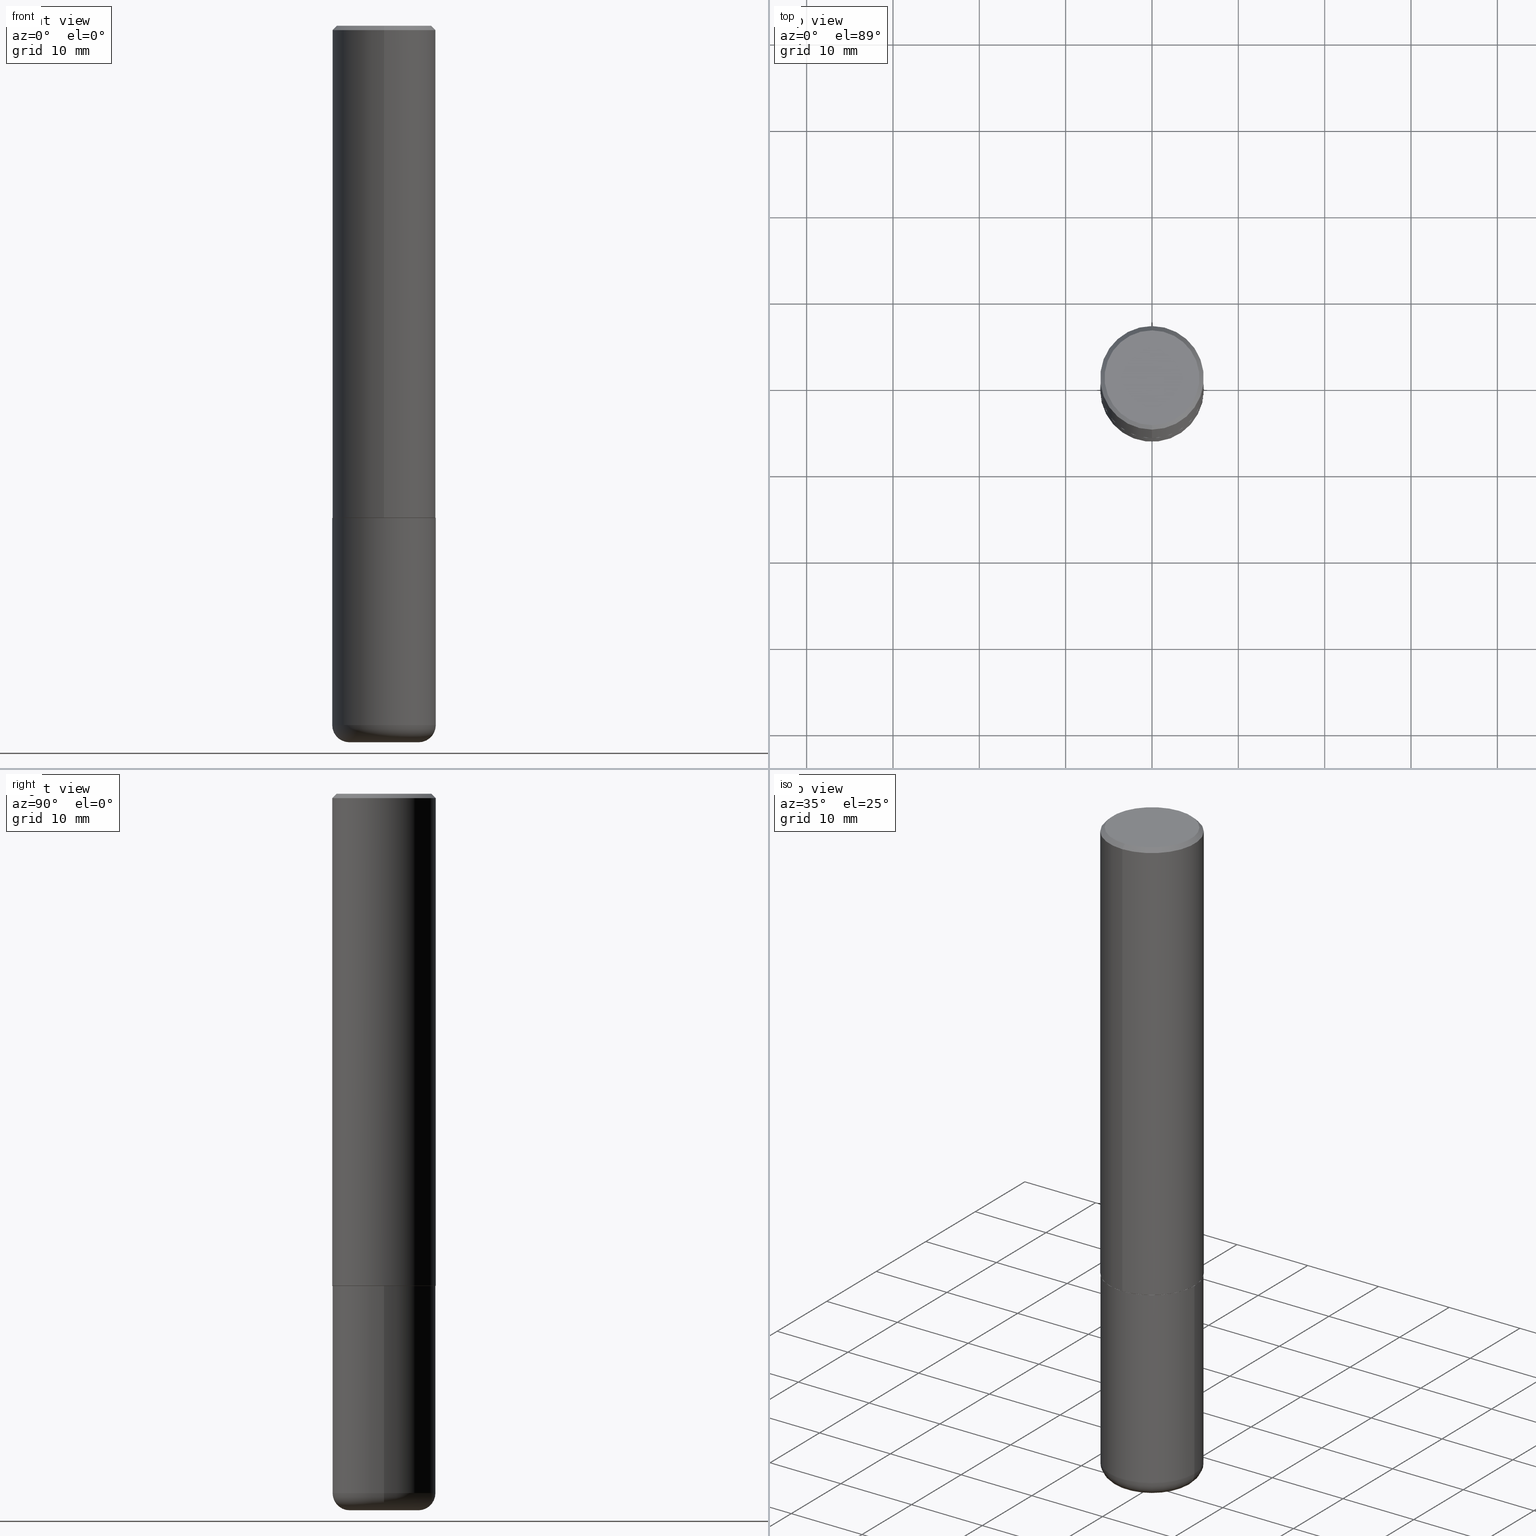
[diagram: canonical four-view strip — front | top / right | iso, engineering-drawing reading convention]
A machine part, canonical four-view strip (front | top / right | iso — engineering-drawing reading convention). The complete STEP part file that produces these views, byte-faithful:
ISO-10303-21;
HEADER;
FILE_DESCRIPTION (( 'STEP AP203' ),
    '1' );
FILE_NAME ('46913.STEP',
    '2024-03-05T07:52:58',
    ( '' ),
    ( '' ),
    'SwSTEP 2.0',
    'SolidWorks 2023',
    '' );
FILE_SCHEMA (( 'CONFIG_CONTROL_DESIGN' ));
ENDSEC;

DATA;
#1 = ORIENTED_EDGE ( 'NONE', *, *, #108, .T. ) ;
#2 = LINE ( 'NONE', #103, #388 ) ;
#3 = EDGE_LOOP ( 'NONE', ( #93, #60 ) ) ;
#4 = PRODUCT ( '46913', '46913', '', ( #148 ) ) ;
#5 = AXIS2_PLACEMENT_3D ( 'NONE', #234, #207, #49 ) ;
#6 =( GEOMETRIC_REPRESENTATION_CONTEXT ( 3 ) GLOBAL_UNCERTAINTY_ASSIGNED_CONTEXT ( ( #297 ) ) GLOBAL_UNIT_ASSIGNED_CONTEXT ( ( #379, #141, #247 ) ) REPRESENTATION_CONTEXT ( 'NONE', 'WORKASPACE' ) );
#7 = DIRECTION ( 'NONE',  ( -2.450099953360415403E-29, 3.484849272499618930E-15, 1.000000000000000000 ) ) ;
#8 = ORIENTED_EDGE ( 'NONE', *, *, #205, .F. ) ;
#9 = EDGE_CURVE ( 'NONE', #314, #150, #231, .T. ) ;
#10 = VERTEX_POINT ( 'NONE', #325 ) ;
#11 = VECTOR ( 'NONE', #397, 39.37007874015748143 ) ;
#12 = CARTESIAN_POINT ( 'NONE',  ( 5.495819205382747907E-29, -7.816865403143895871E-15, -2.243100000000000094 ) ) ;
#13 = PERSON_AND_ORGANIZATION_ROLE ( 'design_supplier' ) ;
#14 = CARTESIAN_POINT ( 'NONE',  ( 4.900199906720849654E-31, -6.969698544999262955E-17, -0.02000000000000007674 ) ) ;
#15 = PERSON_AND_ORGANIZATION ( #404, #201 ) ;
#16 = LINE ( 'NONE', #52, #11 ) ;
#17 = EDGE_CURVE ( 'NONE', #105, #65, #291, .T. ) ;
#18 = PERSON_AND_ORGANIZATION_ROLE ( 'creator' ) ;
#19 = FACE_OUTER_BOUND ( 'NONE', #253, .T. ) ;
#20 = CIRCLE ( 'NONE', #173, 0.2361999999999999933 ) ;
#21 = CC_DESIGN_PERSON_AND_ORGANIZATION_ASSIGNMENT ( #177, #368, ( #4 ) ) ;
#22 = CALENDAR_DATE ( 2024, 5, 3 ) ;
#23 = LINE ( 'NONE', #204, #193 ) ;
#24 = PERSON_AND_ORGANIZATION_ROLE ( 'creator' ) ;
#25 = CARTESIAN_POINT ( 'NONE',  ( 1.649375784469496722E-15, 0.2361999999999999655, -0.02000000000000090247 ) ) ;
#26 = CARTESIAN_POINT ( 'NONE',  ( 7.991058417971171713E-29, -1.140911357093774644E-14, -3.267700000000000049 ) ) ;
#27 = EDGE_LOOP ( 'NONE', ( #383, #188, #160, #317 ) ) ;
#28 = AXIS2_PLACEMENT_3D ( 'NONE', #316, #281, #31 ) ;
#29 = FACE_OUTER_BOUND ( 'NONE', #279, .T. ) ;
#30 = VERTEX_POINT ( 'NONE', #168 ) ;
#31 = DIRECTION ( 'NONE',  ( 1.000000000000000000, -6.982962677686269077E-15, 0.000000000000000000 ) ) ;
#32 = ORIENTED_EDGE ( 'NONE', *, *, #17, .F. ) ;
#33 = ADVANCED_FACE ( 'NONE', ( #356 ), #40, .T. ) ;
#34 = APPLICATION_CONTEXT ( 'configuration controlled 3d designs of mechanical parts and assemblies' ) ;
#35 = ORIENTED_EDGE ( 'NONE', *, *, #396, .T. ) ;
#36 = AXIS2_PLACEMENT_3D ( 'NONE', #192, #101, #74 ) ;
#37 = AXIS2_PLACEMENT_3D ( 'NONE', #313, #254, #346 ) ;
#38 = EDGE_LOOP ( 'NONE', ( #164, #260, #319, #89 ) ) ;
#39 = ADVANCED_FACE ( 'NONE', ( #162 ), #394, .T. ) ;
#40 = PLANE ( 'NONE',  #159 ) ;
#41 = DIRECTION ( 'NONE',  ( -2.445468806185136597E-29, 3.491481338843145583E-15, 1.000000000000000000 ) ) ;
#42 = CIRCLE ( 'NONE', #272, 0.2362000000000002986 ) ;
#43 = CIRCLE ( 'NONE', #167, 0.1575000000000000011 ) ;
#44 = DIRECTION ( 'NONE',  ( -2.445468806185136597E-29, 3.491481338843145583E-15, 1.000000000000000000 ) ) ;
#45 = DIRECTION ( 'NONE',  ( 1.000000000000000000, -6.982962677686264344E-15, 0.000000000000000000 ) ) ;
#46 = CYLINDRICAL_SURFACE ( 'NONE', #54, 0.2361999999999999933 ) ;
#47 = CC_DESIGN_DATE_AND_TIME_ASSIGNMENT ( #175, #398, ( #372 ) ) ;
#48 = AXIS2_PLACEMENT_3D ( 'NONE', #78, #271, #144 ) ;
#49 = DIRECTION ( 'NONE',  ( 6.982962677686265922E-15, 1.000000000000000000, -3.487819265831411350E-15 ) ) ;
#50 = COORDINATED_UNIVERSAL_TIME_OFFSET ( 5, 0, .BEHIND. ) ;
#51 = LINE ( 'NONE', #80, #225 ) ;
#52 = CARTESIAN_POINT ( 'NONE',  ( 1.671196514507810409E-15, 0.2351999999999921653, -2.244100000000000872 ) ) ;
#53 = DIRECTION ( 'NONE',  ( -6.982962677686265922E-15, -1.000000000000000000, 3.484849272499618930E-15 ) ) ;
#54 = AXIS2_PLACEMENT_3D ( 'NONE', #328, #298, #304 ) ;
#55 = EDGE_CURVE ( 'NONE', #105, #320, #2, .T. ) ;
#56 = PERSON_AND_ORGANIZATION ( #404, #201 ) ;
#57 = DIRECTION ( 'NONE',  ( -6.982962677686265922E-15, -1.000000000000000000, 3.484849272499619324E-15 ) ) ;
#58 = CARTESIAN_POINT ( 'NONE',  ( -2.474856915300181060E-45, 3.520061828088122209E-31, 1.010104470189393763E-16 ) ) ;
#59 = DIRECTION ( 'NONE',  ( 1.000000000000000000, -6.982962677686266711E-15, 4.876176775795936353E-29 ) ) ;
#60 = ORIENTED_EDGE ( 'NONE', *, *, #17, .T. ) ;
#61 = CLOSED_SHELL ( 'NONE', ( #153, #418, #196, #86, #259, #39, #226, #128 ) ) ;
#62 = CIRCLE ( 'NONE', #112, 0.2362000000000000210 ) ;
#63 = DIRECTION ( 'NONE',  ( -2.450099953360415403E-29, 3.484849272499618930E-15, 1.000000000000000000 ) ) ;
#64 = EDGE_CURVE ( 'NONE', #378, #410, #166, .T. ) ;
#65 = VERTEX_POINT ( 'NONE', #130 ) ;
#66 = EDGE_LOOP ( 'NONE', ( #32, #219, #341, #349 ) ) ;
#67 = EDGE_LOOP ( 'NONE', ( #216, #91 ) ) ;
#68 = AXIS2_PLACEMENT_3D ( 'NONE', #149, #283, #92 ) ;
#69 = EDGE_LOOP ( 'NONE', ( #126, #133, #264, #8 ) ) ;
#70 = FACE_OUTER_BOUND ( 'NONE', #27, .T. ) ;
#71 = CARTESIAN_POINT ( 'NONE',  ( 7.798600022924401307E-29, -1.113433398957079310E-14, -3.189000000000000501 ) ) ;
#72 = AXIS2_PLACEMENT_3D ( 'NONE', #191, #41, #45 ) ;
#73 = LOCAL_TIME ( 2, 52, 58.00000000000000000, #305 ) ;
#74 = DIRECTION ( 'NONE',  ( -1.000000000000000000, 7.105427357600995548E-15, 0.000000000000000000 ) ) ;
#75 = ADVANCED_FACE ( 'NONE', ( #263 ), #345, .T. ) ;
#76 = CARTESIAN_POINT ( 'NONE',  ( -2.474856915300181060E-45, 3.520061828088122209E-31, 1.010104470189393763E-16 ) ) ;
#77 = ADVANCED_BREP_SHAPE_REPRESENTATION ( '46913', ( #377, #407, #155 ), #6 ) ;
#78 = CARTESIAN_POINT ( 'NONE',  ( 5.498269305336108440E-29, -7.820350252416394661E-15, -2.244099999999999984 ) ) ;
#79 = APPLICATION_PROTOCOL_DEFINITION ( 'international standard', 'config_control_design', 1994, #303 ) ;
#80 = CARTESIAN_POINT ( 'NONE',  ( 1.649375784469496722E-15, 0.2361999999999999655, -0.02000000000000090247 ) ) ;
#81 = CARTESIAN_POINT ( 'NONE',  ( 0.000000000000000000, 0.000000000000000000, 0.000000000000000000 ) ) ;
#82 = DIRECTION ( 'NONE',  ( 4.937700262164536998E-15, 0.7071067811865435759, -0.7071067811865514585 ) ) ;
#83 = COORDINATED_UNIVERSAL_TIME_OFFSET ( 5, 0, .BEHIND. ) ;
#84 = APPROVAL ( #406, 'UNSPECIFIED' ) ;
#85 = DIRECTION ( 'NONE',  ( -6.982962677686265133E-15, -1.000000000000000000, 3.484499991918703113E-15 ) ) ;
#86 = ADVANCED_FACE ( 'NONE', ( #70 ), #100, .T. ) ;
#87 = CARTESIAN_POINT ( 'NONE',  ( -1.649375784469497117E-15, -0.2362000000000001598, 8.231213981644106002E-16 ) ) ;
#88 = PLANE ( 'NONE',  #68 ) ;
#89 = ORIENTED_EDGE ( 'NONE', *, *, #391, .F. ) ;
#90 = LINE ( 'NONE', #415, #218 ) ;
#91 = ORIENTED_EDGE ( 'NONE', *, *, #108, .F. ) ;
#92 = DIRECTION ( 'NONE',  ( -1.000000000000000000, 6.982962677686265922E-15, -4.876176775795935793E-29 ) ) ;
#93 = ORIENTED_EDGE ( 'NONE', *, *, #336, .T. ) ;
#94 = LOCAL_TIME ( 2, 52, 58.00000000000000000, #50 ) ;
#95 = CARTESIAN_POINT ( 'NONE',  ( 0.000000000000000000, 0.000000000000000000, 0.000000000000000000 ) ) ;
#96 = ORIENTED_EDGE ( 'NONE', *, *, #361, .T. ) ;
#97 = EDGE_LOOP ( 'NONE', ( #257, #134, #223, #287 ) ) ;
#98 = EDGE_CURVE ( 'NONE', #10, #410, #261, .T. ) ;
#99 = ORIENTED_EDGE ( 'NONE', *, *, #384, .F. ) ;
#100 = CONICAL_SURFACE ( 'NONE', #255, 0.2362000000000000210, 0.7853981633974461696 ) ;
#101 = DIRECTION ( 'NONE',  ( 7.105427357601001859E-15, 1.000000000000000000, -3.491481338843145583E-15 ) ) ;
#102 = DIRECTION ( 'NONE',  ( -6.982962677686265922E-15, -1.000000000000000000, 3.484849272499618535E-15 ) ) ;
#103 = CARTESIAN_POINT ( 'NONE',  ( -1.620449627073635276E-15, -0.2362000000000001043, -0.01999999999999925449 ) ) ;
#104 = CONICAL_SURFACE ( 'NONE', #5, 0.2362000000000000210, 0.7853981633974461696 ) ;
#105 = VERTEX_POINT ( 'NONE', #352 ) ;
#106 = FACE_OUTER_BOUND ( 'NONE', #97, .T. ) ;
#107 = CC_DESIGN_PERSON_AND_ORGANIZATION_ASSIGNMENT ( #278, #270, ( #194 ) ) ;
#108 = EDGE_CURVE ( 'NONE', #378, #347, #43, .T. ) ;
#109 = APPROVAL_DATE_TIME ( #199, #357 ) ;
#110 = CARTESIAN_POINT ( 'NONE',  ( 4.900199906720849654E-31, -6.969698544999262955E-17, -0.02000000000000007674 ) ) ;
#111 = DATE_AND_TIME ( #235, #73 ) ;
#112 = AXIS2_PLACEMENT_3D ( 'NONE', #274, #198, #408 ) ;
#113 = CARTESIAN_POINT ( 'NONE',  ( 0.1575000000000000011, -1.223415061130637979E-14, -3.189000000000000501 ) ) ;
#114 = PERSON_AND_ORGANIZATION ( #404, #201 ) ;
#115 = DIRECTION ( 'NONE',  ( -2.450099953360415403E-29, 3.484849272499618930E-15, 1.000000000000000000 ) ) ;
#116 = DATE_TIME_ROLE ( 'classification_date' ) ;
#117 = CARTESIAN_POINT ( 'NONE',  ( -0.2361999999999999933, -7.806481689168991326E-15, -2.244100000000000428 ) ) ;
#118 = SHAPE_DEFINITION_REPRESENTATION ( #229, #77 ) ;
#119 = CARTESIAN_POINT ( 'NONE',  ( -0.2361999999999999933, 1.678301941865356591E-15, -1.161852468318208757E-29 ) ) ;
#120 = VECTOR ( 'NONE', #249, 39.37007874015748143 ) ;
#121 = ORIENTED_EDGE ( 'NONE', *, *, #239, .T. ) ;
#122 = ORIENTED_EDGE ( 'NONE', *, *, #64, .F. ) ;
#123 = FACE_OUTER_BOUND ( 'NONE', #395, .T. ) ;
#124 = VERTEX_POINT ( 'NONE', #230 ) ;
#125 = CARTESIAN_POINT ( 'NONE',  ( -1.620449627073635276E-15, -0.2362000000000001043, -0.01999999999999925449 ) ) ;
#126 = ORIENTED_EDGE ( 'NONE', *, *, #276, .T. ) ;
#127 = AXIS2_PLACEMENT_3D ( 'NONE', #301, #139, #85 ) ;
#128 = ADVANCED_FACE ( 'NONE', ( #322 ), #359, .F. ) ;
#129 = EDGE_LOOP ( 'NONE', ( #122, #1, #227, #154 ) ) ;
#130 = CARTESIAN_POINT ( 'NONE',  ( 1.579546157692633424E-15, 0.2161999999999999478, -6.524139656954780766E-16 ) ) ;
#131 = DIRECTION ( 'NONE',  ( 6.982962677686265922E-15, 1.000000000000000000, -3.487819265831411350E-15 ) ) ;
#132 = DIRECTION ( 'NONE',  ( 2.438088387897960049E-29, -3.491481338843145188E-15, -1.000000000000000000 ) ) ;
#133 = ORIENTED_EDGE ( 'NONE', *, *, #355, .T. ) ;
#134 = ORIENTED_EDGE ( 'NONE', *, *, #64, .T. ) ;
#135 = AXIS2_PLACEMENT_3D ( 'NONE', #142, #367, #236 ) ;
#136 = DIRECTION ( 'NONE',  ( -6.982962677686265922E-15, -1.000000000000000000, 3.469747663417772663E-15 ) ) ;
#137 = EDGE_CURVE ( 'NONE', #347, #10, #307, .T. ) ;
#138 = DIRECTION ( 'NONE',  ( 1.000000000000000000, 0.000000000000000000, 0.000000000000000000 ) ) ;
#139 = DIRECTION ( 'NONE',  ( -2.450099953360415403E-29, 3.484849272499618930E-15, 1.000000000000000000 ) ) ;
#140 = DIMENSIONAL_EXPONENTS ( 1.000000000000000000, 0.000000000000000000, 0.000000000000000000, 0.000000000000000000, 0.000000000000000000, 0.000000000000000000, 0.000000000000000000 ) ;
#141 =( NAMED_UNIT ( * ) PLANE_ANGLE_UNIT ( ) SI_UNIT ( $, .RADIAN. ) );
#142 = CARTESIAN_POINT ( 'NONE',  ( 1.509716530915770323E-15, 0.2161999999999999478, -7.029191892049475614E-16 ) ) ;
#143 = AXIS2_PLACEMENT_3D ( 'NONE', #411, #339, #57 ) ;
#144 = DIRECTION ( 'NONE',  ( -6.982962677686265133E-15, -1.000000000000000000, 3.484499991918703113E-15 ) ) ;
#145 = CALENDAR_DATE ( 2024, 5, 3 ) ;
#146 = EDGE_CURVE ( 'NONE', #65, #385, #51, .T. ) ;
#147 = DIRECTION ( 'NONE',  ( -4.937700262165812586E-15, -0.7071067811867262076, 0.7071067811863689379 ) ) ;
#148 = MECHANICAL_CONTEXT ( 'NONE', #303, 'mechanical' ) ;
#149 = CARTESIAN_POINT ( 'NONE',  ( 5.487876547960065873E-29, -7.835233272497903917E-15, -2.244100000000000428 ) ) ;
#150 = VERTEX_POINT ( 'NONE', #334 ) ;
#151 = DIRECTION ( 'NONE',  ( -2.445468806185136877E-29, 3.491481338843145188E-15, 1.000000000000000000 ) ) ;
#152 = CIRCLE ( 'NONE', #37, 0.2351999999999999924 ) ;
#153 = ADVANCED_FACE ( 'NONE', ( #202 ), #315, .T. ) ;
#154 = ORIENTED_EDGE ( 'NONE', *, *, #288, .F. ) ;
#155 = AXIS2_PLACEMENT_3D ( 'NONE', #81, #311, #138 ) ;
#156 = ORIENTED_EDGE ( 'NONE', *, *, #391, .T. ) ;
#157 = DIRECTION ( 'NONE',  ( -2.450099953360415403E-29, 3.484849272499618930E-15, 1.000000000000000000 ) ) ;
#158 = ORIENTED_EDGE ( 'NONE', *, *, #205, .T. ) ;
#159 = AXIS2_PLACEMENT_3D ( 'NONE', #195, #132, #190 ) ;
#160 = ORIENTED_EDGE ( 'NONE', *, *, #146, .T. ) ;
#161 = CIRCLE ( 'NONE', #403, 0.2362000000000000210 ) ;
#162 = FACE_OUTER_BOUND ( 'NONE', #228, .T. ) ;
#163 = DIRECTION ( 'NONE',  ( -2.450099953360415403E-29, 3.484849272499618930E-15, 1.000000000000000000 ) ) ;
#164 = ORIENTED_EDGE ( 'NONE', *, *, #98, .T. ) ;
#165 = EDGE_CURVE ( 'NONE', #343, #150, #23, .T. ) ;
#166 = CIRCLE ( 'NONE', #36, 0.07869999999999996443 ) ;
#167 = AXIS2_PLACEMENT_3D ( 'NONE', #392, #44, #293 ) ;
#168 = CARTESIAN_POINT ( 'NONE',  ( 1.674749228186612096E-15, 0.2351999999999921653, -2.244100000000000872 ) ) ;
#169 = ORIENTED_EDGE ( 'NONE', *, *, #222, .F. ) ;
#170 = CC_DESIGN_PERSON_AND_ORGANIZATION_ASSIGNMENT ( #114, #24, ( #262 ) ) ;
#171 = EDGE_CURVE ( 'NONE', #30, #314, #16, .T. ) ;
#172 = CYLINDRICAL_SURFACE ( 'NONE', #180, 0.2362000000000001598 ) ;
#173 = AXIS2_PLACEMENT_3D ( 'NONE', #174, #306, #246 ) ;
#174 = CARTESIAN_POINT ( 'NONE',  ( 5.487876547960065873E-29, -7.835233272497903917E-15, -2.244100000000000428 ) ) ;
#175 = DATE_AND_TIME ( #145, #273 ) ;
#176 = FACE_OUTER_BOUND ( 'NONE', #38, .T. ) ;
#177 = PERSON_AND_ORGANIZATION ( #404, #201 ) ;
#178 = CARTESIAN_POINT ( 'NONE',  ( 0.000000000000000000, 0.000000000000000000, 0.000000000000000000 ) ) ;
#179 = APPROVAL_STATUS ( 'not_yet_approved' ) ;
#180 = AXIS2_PLACEMENT_3D ( 'NONE', #178, #327, #181 ) ;
#181 = DIRECTION ( 'NONE',  ( -6.982962677686265922E-15, -1.000000000000000000, 3.484849272499619324E-15 ) ) ;
#182 = APPROVAL_ROLE ( '' ) ;
#183 = LINE ( 'NONE', #119, #299 ) ;
#184 = CARTESIAN_POINT ( 'NONE',  ( -1.642392821791754502E-15, -0.2352000000000078195, -2.244099999999999095 ) ) ;
#185 = ORIENTED_EDGE ( 'NONE', *, *, #9, .T. ) ;
#186 = APPROVAL_PERSON_ORGANIZATION ( #203, #357, #338 ) ;
#187 = CARTESIAN_POINT ( 'NONE',  ( -0.1575000000000000011, -9.873020404910514350E-15, -3.267700000000000049 ) ) ;
#188 = ORIENTED_EDGE ( 'NONE', *, *, #336, .F. ) ;
#189 = AXIS2_PLACEMENT_3D ( 'NONE', #95, #251, #59 ) ;
#190 = DIRECTION ( 'NONE',  ( -1.000000000000000000, 6.982962677686265922E-15, -4.876176775795935793E-29 ) ) ;
#191 = CARTESIAN_POINT ( 'NONE',  ( 7.798600022924401307E-29, -1.113433398957079310E-14, -3.189000000000000501 ) ) ;
#192 = CARTESIAN_POINT ( 'NONE',  ( -0.1575000000000000011, -1.001522918074863550E-14, -3.189000000000000501 ) ) ;
#193 = VECTOR ( 'NONE', #147, 39.37007874015748143 ) ;
#194 = SECURITY_CLASSIFICATION ( '', '', #363 ) ;
#195 = CARTESIAN_POINT ( 'NONE',  ( 7.991058417971171713E-29, -1.140911357093774644E-14, -3.267700000000000049 ) ) ;
#196 = ADVANCED_FACE ( 'NONE', ( #402 ), #104, .T. ) ;
#197 = DIRECTION ( 'NONE',  ( -6.982962677686265133E-15, -1.000000000000000000, 3.484499991918703113E-15 ) ) ;
#198 = DIRECTION ( 'NONE',  ( -2.445468806185136597E-29, 3.491481338843145583E-15, 1.000000000000000000 ) ) ;
#199 = DATE_AND_TIME ( #269, #94 ) ;
#200 = AXIS2_PLACEMENT_3D ( 'NONE', #14, #243, #268 ) ;
#201 = ORGANIZATION ( 'UNSPECIFIED', 'UNSPECIFIED', '' ) ;
#202 = FACE_OUTER_BOUND ( 'NONE', #393, .T. ) ;
#203 = PERSON_AND_ORGANIZATION ( #404, #201 ) ;
#204 = CARTESIAN_POINT ( 'NONE',  ( -1.642392821791754502E-15, -0.2352000000000078195, -2.244099999999999095 ) ) ;
#205 = EDGE_CURVE ( 'NONE', #150, #320, #335, .T. ) ;
#206 = CALENDAR_DATE ( 2024, 5, 3 ) ;
#207 = DIRECTION ( 'NONE',  ( 2.450099953360415403E-29, -3.484849272499618930E-15, -1.000000000000000000 ) ) ;
#208 = AXIS2_PLACEMENT_3D ( 'NONE', #289, #163, #197 ) ;
#209 = AXIS2_PLACEMENT_3D ( 'NONE', #58, #157, #217 ) ;
#210 = FACE_OUTER_BOUND ( 'NONE', #69, .T. ) ;
#211 = ADVANCED_FACE ( 'NONE', ( #106 ), #324, .T. ) ;
#212 = APPROVAL_ROLE ( '' ) ;
#213 = CARTESIAN_POINT ( 'NONE',  ( 0.1575000000000000011, -1.250893019267333313E-14, -3.267700000000000049 ) ) ;
#214 = VERTEX_POINT ( 'NONE', #117 ) ;
#215 = DIRECTION ( 'NONE',  ( 1.000000000000000000, -6.982962677686261977E-15, 0.000000000000000000 ) ) ;
#216 = ORIENTED_EDGE ( 'NONE', *, *, #321, .F. ) ;
#217 = DIRECTION ( 'NONE',  ( -6.982962677686265922E-15, -1.000000000000000000, 3.484849272499618535E-15 ) ) ;
#218 = VECTOR ( 'NONE', #340, 39.37007874015748143 ) ;
#219 = ORIENTED_EDGE ( 'NONE', *, *, #55, .T. ) ;
#220 = APPROVAL_PERSON_ORGANIZATION ( #15, #84, #212 ) ;
#221 = DIRECTION ( 'NONE',  ( -2.445468806185136597E-29, 3.491481338843145583E-15, 1.000000000000000000 ) ) ;
#222 = EDGE_CURVE ( 'NONE', #343, #30, #232, .T. ) ;
#223 = ORIENTED_EDGE ( 'NONE', *, *, #98, .F. ) ;
#224 = ORIENTED_EDGE ( 'NONE', *, *, #165, .F. ) ;
#225 = VECTOR ( 'NONE', #82, 39.37007874015748143 ) ;
#226 = ADVANCED_FACE ( 'NONE', ( #19 ), #409, .F. ) ;
#227 = ORIENTED_EDGE ( 'NONE', *, *, #137, .T. ) ;
#228 = EDGE_LOOP ( 'NONE', ( #323, #96, #416, #374 ) ) ;
#229 = PRODUCT_DEFINITION_SHAPE ( 'NONE', 'NONE',  #372 ) ;
#230 = CARTESIAN_POINT ( 'NONE',  ( 0.2361999999999999933, -9.484609056967400443E-15, -2.244100000000000428 ) ) ;
#231 = CIRCLE ( 'NONE', #329, 0.2362000000000002986 ) ;
#232 = CIRCLE ( 'NONE', #48, 0.2351999999999999924 ) ;
#233 = ORIENTED_EDGE ( 'NONE', *, *, #276, .F. ) ;
#234 = CARTESIAN_POINT ( 'NONE',  ( 4.900199906720849654E-31, -6.969698544999262955E-17, -0.02000000000000007674 ) ) ;
#235 = CALENDAR_DATE ( 2024, 5, 3 ) ;
#236 = DIRECTION ( 'NONE',  ( 6.982962677686265922E-15, 1.000000000000000000, -3.484849272499618930E-15 ) ) ;
#237 = APPROVAL_DATE_TIME ( #111, #387 ) ;
#238 = VECTOR ( 'NONE', #242, 39.37007874015748143 ) ;
#239 = EDGE_CURVE ( 'NONE', #214, #124, #20, .T. ) ;
#240 = DESIGN_CONTEXT ( 'detailed design', #34, 'design' ) ;
#241 = CC_DESIGN_SECURITY_CLASSIFICATION ( #194, ( #262 ) ) ;
#242 = DIRECTION ( 'NONE',  ( -2.450099953360415403E-29, 3.484849272499618930E-15, 1.000000000000000000 ) ) ;
#243 = DIRECTION ( 'NONE',  ( -2.450099953360415403E-29, 3.484849272499618930E-15, 1.000000000000000000 ) ) ;
#244 = COORDINATED_UNIVERSAL_TIME_OFFSET ( 5, 0, .BEHIND. ) ;
#245 = CC_DESIGN_DATE_AND_TIME_ASSIGNMENT ( #275, #116, ( #194 ) ) ;
#246 = DIRECTION ( 'NONE',  ( 1.000000000000000000, -6.982962677686269077E-15, 0.000000000000000000 ) ) ;
#247 =( NAMED_UNIT ( * ) SI_UNIT ( $, .STERADIAN. ) SOLID_ANGLE_UNIT ( ) );
#248 = CIRCLE ( 'NONE', #285, 0.1575000000000000011 ) ;
#249 = DIRECTION ( 'NONE',  ( -2.445468806185136877E-29, 3.491481338843145188E-15, 1.000000000000000000 ) ) ;
#250 = ORIENTED_EDGE ( 'NONE', *, *, #355, .F. ) ;
#251 = DIRECTION ( 'NONE',  ( -2.445468806185136597E-29, 3.491481338843145583E-15, 1.000000000000000000 ) ) ;
#252 = ORIENTED_EDGE ( 'NONE', *, *, #288, .T. ) ;
#253 = EDGE_LOOP ( 'NONE', ( #169, #284 ) ) ;
#254 = DIRECTION ( 'NONE',  ( -2.450099953360415403E-29, 3.484849272499618930E-15, 1.000000000000000000 ) ) ;
#255 = AXIS2_PLACEMENT_3D ( 'NONE', #258, #290, #131 ) ;
#256 = ORIENTED_EDGE ( 'NONE', *, *, #239, .F. ) ;
#257 = ORIENTED_EDGE ( 'NONE', *, *, #321, .T. ) ;
#258 = CARTESIAN_POINT ( 'NONE',  ( 4.900199906720849654E-31, -6.969698544999262955E-17, -0.02000000000000007674 ) ) ;
#259 = ADVANCED_FACE ( 'NONE', ( #371 ), #172, .T. ) ;
#260 = ORIENTED_EDGE ( 'NONE', *, *, #384, .T. ) ;
#261 = CIRCLE ( 'NONE', #72, 0.2362000000000000210 ) ;
#262 = PRODUCT_DEFINITION_FORMATION_WITH_SPECIFIED_SOURCE ( 'ANY', '', #4, .NOT_KNOWN. ) ;
#263 = FACE_OUTER_BOUND ( 'NONE', #129, .T. ) ;
#264 = ORIENTED_EDGE ( 'NONE', *, *, #302, .F. ) ;
#265 = ADVANCED_FACE ( 'NONE', ( #176 ), #46, .T. ) ;
#266 = ORIENTED_EDGE ( 'NONE', *, *, #222, .T. ) ;
#267 = CIRCLE ( 'NONE', #200, 0.2362000000000000210 ) ;
#268 = DIRECTION ( 'NONE',  ( -6.982962677686265922E-15, -1.000000000000000000, 3.487819265831411350E-15 ) ) ;
#269 = CALENDAR_DATE ( 2024, 5, 3 ) ;
#270 = PERSON_AND_ORGANIZATION_ROLE ( 'classification_officer' ) ;
#271 = DIRECTION ( 'NONE',  ( -2.450099953360415403E-29, 3.484849272499618930E-15, 1.000000000000000000 ) ) ;
#272 = AXIS2_PLACEMENT_3D ( 'NONE', #12, #115, #136 ) ;
#273 = LOCAL_TIME ( 2, 52, 58.00000000000000000, #83 ) ;
#274 = CARTESIAN_POINT ( 'NONE',  ( 7.798600022924401307E-29, -1.113433398957079310E-14, -3.189000000000000501 ) ) ;
#275 = DATE_AND_TIME ( #22, #280 ) ;
#276 = EDGE_CURVE ( 'NONE', #150, #314, #42, .T. ) ;
#277 = CARTESIAN_POINT ( 'NONE',  ( 7.798600022924401307E-29, -1.113433398957079310E-14, -3.189000000000000501 ) ) ;
#278 = PERSON_AND_ORGANIZATION ( #404, #201 ) ;
#279 = EDGE_LOOP ( 'NONE', ( #35, #121 ) ) ;
#280 = LOCAL_TIME ( 2, 52, 58.00000000000000000, #308 ) ;
#281 = DIRECTION ( 'NONE',  ( -2.445468806185136597E-29, 3.491481338843145583E-15, 1.000000000000000000 ) ) ;
#282 = CARTESIAN_POINT ( 'NONE',  ( 1.678301941865385779E-15, 0.2361999999999924715, -2.243100000000000982 ) ) ;
#283 = DIRECTION ( 'NONE',  ( 2.438088387897960049E-29, -3.491481338843145188E-15, -1.000000000000000000 ) ) ;
#284 = ORIENTED_EDGE ( 'NONE', *, *, #361, .F. ) ;
#285 = AXIS2_PLACEMENT_3D ( 'NONE', #26, #221, #215 ) ;
#286 = CC_DESIGN_APPROVAL ( #84, ( #262 ) ) ;
#287 = ORIENTED_EDGE ( 'NONE', *, *, #137, .F. ) ;
#288 = EDGE_CURVE ( 'NONE', #410, #10, #62, .T. ) ;
#289 = CARTESIAN_POINT ( 'NONE',  ( 5.498269305336108440E-29, -7.820350252416394661E-15, -2.244099999999999984 ) ) ;
#290 = DIRECTION ( 'NONE',  ( 2.450099953360415403E-29, -3.484849272499618930E-15, -1.000000000000000000 ) ) ;
#291 = CIRCLE ( 'NONE', #344, 0.2161999999999999478 ) ;
#292 = DIRECTION ( 'NONE',  ( -6.982962677686265922E-15, -1.000000000000000000, 3.469747663417772663E-15 ) ) ;
#293 = DIRECTION ( 'NONE',  ( 1.000000000000000000, -6.982962677686261977E-15, 0.000000000000000000 ) ) ;
#294 = EDGE_CURVE ( 'NONE', #385, #320, #267, .T. ) ;
#295 = DIRECTION ( 'NONE',  ( 1.000000000000000000, -6.982962677686265922E-15, 4.883557194083112340E-29 ) ) ;
#296 = CC_DESIGN_PERSON_AND_ORGANIZATION_ASSIGNMENT ( #56, #18, ( #372 ) ) ;
#297 = UNCERTAINTY_MEASURE_WITH_UNIT (LENGTH_MEASURE( 1.000000000000000082E-05 ), #379, 'distance_accuracy_value', 'NONE');
#298 = DIRECTION ( 'NONE',  ( -2.445468806185136597E-29, 3.491481338843145583E-15, 1.000000000000000000 ) ) ;
#299 = VECTOR ( 'NONE', #151, 39.37007874015748143 ) ;
#300 = PERSON_AND_ORGANIZATION ( #404, #201 ) ;
#301 = CARTESIAN_POINT ( 'NONE',  ( 5.498269305336108440E-29, -7.820350252416394661E-15, -2.244099999999999984 ) ) ;
#302 = EDGE_CURVE ( 'NONE', #320, #385, #161, .T. ) ;
#303 = APPLICATION_CONTEXT ( 'configuration controlled 3d designs of mechanical parts and assemblies' ) ;
#304 = DIRECTION ( 'NONE',  ( 1.000000000000000000, -6.982962677686266711E-15, 4.876176775795936353E-29 ) ) ;
#305 = COORDINATED_UNIVERSAL_TIME_OFFSET ( 5, 0, .BEHIND. ) ;
#306 = DIRECTION ( 'NONE',  ( -2.445468806185136597E-29, 3.491481338843145583E-15, 1.000000000000000000 ) ) ;
#307 = CIRCLE ( 'NONE', #380, 0.07869999999999996443 ) ;
#308 = COORDINATED_UNIVERSAL_TIME_OFFSET ( 5, 0, .BEHIND. ) ;
#309 = APPROVAL_PERSON_ORGANIZATION ( #300, #387, #182 ) ;
#310 = CARTESIAN_POINT ( 'NONE',  ( 5.498269305336108440E-29, -7.820350252416394661E-15, -2.244100000000000428 ) ) ;
#311 = DIRECTION ( 'NONE',  ( 0.000000000000000000, 0.000000000000000000, 1.000000000000000000 ) ) ;
#312 = LENGTH_MEASURE_WITH_UNIT ( LENGTH_MEASURE( 0.02539999999999999897 ), #342 );
#313 = CARTESIAN_POINT ( 'NONE',  ( 5.498269305336108440E-29, -7.820350252416394661E-15, -2.244099999999999984 ) ) ;
#314 = VERTEX_POINT ( 'NONE', #282 ) ;
#315 = CONICAL_SURFACE ( 'NONE', #127, 0.2351999999999999924, 0.7853981633977044075 ) ;
#316 = CARTESIAN_POINT ( 'NONE',  ( 5.487876547960065873E-29, -7.835233272497903917E-15, -2.244100000000000428 ) ) ;
#317 = ORIENTED_EDGE ( 'NONE', *, *, #294, .T. ) ;
#318 = LINE ( 'NONE', #348, #120 ) ;
#319 = ORIENTED_EDGE ( 'NONE', *, *, #396, .F. ) ;
#320 = VERTEX_POINT ( 'NONE', #125 ) ;
#321 = EDGE_CURVE ( 'NONE', #347, #378, #248, .T. ) ;
#322 = FACE_OUTER_BOUND ( 'NONE', #3, .T. ) ;
#323 = ORIENTED_EDGE ( 'NONE', *, *, #171, .F. ) ;
#324 = TOROIDAL_SURFACE ( 'NONE', #358, 0.1575000000000000011, 0.07869999999999996443 ) ;
#325 = CARTESIAN_POINT ( 'NONE',  ( 0.2361999999999999933, -1.278370977404028805E-14, -3.189000000000000501 ) ) ;
#326 = ADVANCED_FACE ( 'NONE', ( #29 ), #88, .F. ) ;
#327 = DIRECTION ( 'NONE',  ( -2.450099953360415403E-29, 3.484849272499618930E-15, 1.000000000000000000 ) ) ;
#328 = CARTESIAN_POINT ( 'NONE',  ( 0.000000000000000000, 0.000000000000000000, 0.000000000000000000 ) ) ;
#329 = AXIS2_PLACEMENT_3D ( 'NONE', #386, #360, #292 ) ;
#330 = CIRCLE ( 'NONE', #209, 0.2161999999999999478 ) ;
#331 = APPLICATION_PROTOCOL_DEFINITION ( 'international standard', 'config_control_design', 1994, #34 ) ;
#332 = DIRECTION ( 'NONE',  ( -2.450099953360414843E-29, 3.484849272499618930E-15, 1.000000000000000000 ) ) ;
#333 = APPROVAL_STATUS ( 'not_yet_approved' ) ;
#334 = CARTESIAN_POINT ( 'NONE',  ( -1.649375784469443080E-15, -0.2362000000000081257, -2.243099999999999206 ) ) ;
#335 = LINE ( 'NONE', #87, #238 ) ;
#336 = EDGE_CURVE ( 'NONE', #65, #105, #330, .T. ) ;
#337 = AXIS2_PLACEMENT_3D ( 'NONE', #310, #332, #53 ) ;
#338 = APPROVAL_ROLE ( '' ) ;
#339 = DIRECTION ( 'NONE',  ( -2.450099953360415403E-29, 3.484849272499618930E-15, 1.000000000000000000 ) ) ;
#340 = DIRECTION ( 'NONE',  ( -2.450099953360415403E-29, 3.484849272499618930E-15, 1.000000000000000000 ) ) ;
#341 = ORIENTED_EDGE ( 'NONE', *, *, #302, .T. ) ;
#342 =( LENGTH_UNIT ( ) NAMED_UNIT ( * ) SI_UNIT ( $, .METRE. ) );
#343 = VERTEX_POINT ( 'NONE', #184 ) ;
#344 = AXIS2_PLACEMENT_3D ( 'NONE', #76, #7, #102 ) ;
#345 = TOROIDAL_SURFACE ( 'NONE', #365, 0.1575000000000000011, 0.07869999999999996443 ) ;
#346 = DIRECTION ( 'NONE',  ( -6.982962677686265133E-15, -1.000000000000000000, 3.484499991918703113E-15 ) ) ;
#347 = VERTEX_POINT ( 'NONE', #213 ) ;
#348 = CARTESIAN_POINT ( 'NONE',  ( 0.2361999999999999933, -1.649375784469496131E-15, 1.151752954443000088E-29 ) ) ;
#349 = ORIENTED_EDGE ( 'NONE', *, *, #146, .F. ) ;
#350 = EDGE_LOOP ( 'NONE', ( #250, #185, #158, #412 ) ) ;
#351 = CC_DESIGN_APPROVAL ( #357, ( #372 ) ) ;
#352 = CARTESIAN_POINT ( 'NONE',  ( -1.551844647095919747E-15, -0.2161999999999999478, 8.544348597333568046E-16 ) ) ;
#353 = CC_DESIGN_PERSON_AND_ORGANIZATION_ASSIGNMENT ( #401, #13, ( #262 ) ) ;
#354 = DIRECTION ( 'NONE',  ( -4.851104656540953231E-15, -0.7071067811865484609, -0.7071067811865465735 ) ) ;
#355 = EDGE_CURVE ( 'NONE', #314, #385, #90, .T. ) ;
#356 = FACE_OUTER_BOUND ( 'NONE', #67, .T. ) ;
#357 = APPROVAL ( #179, 'UNSPECIFIED' ) ;
#358 = AXIS2_PLACEMENT_3D ( 'NONE', #277, #399, #362 ) ;
#359 = PLANE ( 'NONE',  #135 ) ;
#360 = DIRECTION ( 'NONE',  ( -2.450099953360415403E-29, 3.484849272499618930E-15, 1.000000000000000000 ) ) ;
#361 = EDGE_CURVE ( 'NONE', #30, #343, #152, .T. ) ;
#362 = DIRECTION ( 'NONE',  ( 1.000000000000000000, -6.982962677686265922E-15, 4.883557194083112340E-29 ) ) ;
#363 = SECURITY_CLASSIFICATION_LEVEL ( 'unclassified' ) ;
#364 = DIRECTION ( 'NONE',  ( -6.982962677686266711E-15, -1.000000000000000000, 3.491481338843145583E-15 ) ) ;
#365 = AXIS2_PLACEMENT_3D ( 'NONE', #71, #390, #295 ) ;
#366 = DATE_AND_TIME ( #206, #405 ) ;
#367 = DIRECTION ( 'NONE',  ( 2.450099953360414843E-29, -3.484849272499618930E-15, -1.000000000000000000 ) ) ;
#368 = PERSON_AND_ORGANIZATION_ROLE ( 'design_owner' ) ;
#369 = DIRECTION ( 'NONE',  ( 1.000000000000000000, -6.982962677686273021E-15, 0.000000000000000000 ) ) ;
#370 = APPROVAL_DATE_TIME ( #366, #84 ) ;
#371 = FACE_OUTER_BOUND ( 'NONE', #350, .T. ) ;
#372 = PRODUCT_DEFINITION ( 'UNKNOWN', '', #262, #240 ) ;
#373 = DIRECTION ( 'NONE',  ( -6.982962677686265922E-15, -1.000000000000000000, 3.487819265831411350E-15 ) ) ;
#374 = ORIENTED_EDGE ( 'NONE', *, *, #9, .F. ) ;
#375 = ADVANCED_FACE ( 'NONE', ( #123 ), #382, .T. ) ;
#376 = CARTESIAN_POINT ( 'NONE',  ( -0.2361999999999999933, -9.456032047705438285E-15, -3.189000000000000501 ) ) ;
#377 = MANIFOLD_SOLID_BREP ( 'Body-Move/Copy2[1]', #417 ) ;
#378 = VERTEX_POINT ( 'NONE', #187 ) ;
#379 =( CONVERSION_BASED_UNIT ( 'INCH', #312 ) LENGTH_UNIT ( ) NAMED_UNIT ( #140 ) );
#380 = AXIS2_PLACEMENT_3D ( 'NONE', #113, #364, #369 ) ;
#381 = CC_DESIGN_APPROVAL ( #387, ( #194 ) ) ;
#382 = CYLINDRICAL_SURFACE ( 'NONE', #189, 0.2361999999999999933 ) ;
#383 = ORIENTED_EDGE ( 'NONE', *, *, #55, .F. ) ;
#384 = EDGE_CURVE ( 'NONE', #410, #214, #183, .T. ) ;
#385 = VERTEX_POINT ( 'NONE', #25 ) ;
#386 = CARTESIAN_POINT ( 'NONE',  ( 5.495819205382747907E-29, -7.816865403143895871E-15, -2.243100000000000094 ) ) ;
#387 = APPROVAL ( #333, 'UNSPECIFIED' ) ;
#388 = VECTOR ( 'NONE', #354, 39.37007874015748143 ) ;
#389 = CIRCLE ( 'NONE', #28, 0.2361999999999999933 ) ;
#390 = DIRECTION ( 'NONE',  ( -2.445468806185136597E-29, 3.491481338843145583E-15, 1.000000000000000000 ) ) ;
#391 = EDGE_CURVE ( 'NONE', #10, #124, #318, .T. ) ;
#392 = CARTESIAN_POINT ( 'NONE',  ( 7.991058417971171713E-29, -1.140911357093774644E-14, -3.267700000000000049 ) ) ;
#393 = EDGE_LOOP ( 'NONE', ( #266, #414, #233, #224 ) ) ;
#394 = CONICAL_SURFACE ( 'NONE', #208, 0.2351999999999999924, 0.7853981633977044075 ) ;
#395 = EDGE_LOOP ( 'NONE', ( #99, #252, #156, #256 ) ) ;
#396 = EDGE_CURVE ( 'NONE', #124, #214, #389, .T. ) ;
#397 = DIRECTION ( 'NONE',  ( 5.024295867789349022E-15, 0.7071067811867310926, 0.7071067811863640529 ) ) ;
#398 = DATE_TIME_ROLE ( 'creation_date' ) ;
#399 = DIRECTION ( 'NONE',  ( -2.445468806185136597E-29, 3.491481338843145583E-15, 1.000000000000000000 ) ) ;
#400 = PRODUCT_RELATED_PRODUCT_CATEGORY ( 'detail', '', ( #4 ) ) ;
#401 = PERSON_AND_ORGANIZATION ( #404, #201 ) ;
#402 = FACE_OUTER_BOUND ( 'NONE', #66, .T. ) ;
#403 = AXIS2_PLACEMENT_3D ( 'NONE', #110, #63, #373 ) ;
#404 = PERSON ( 'UNSPECIFIED', 'UNSPECIFIED', 'UNSPECIFIED', ('UNSPECIFIED'), ('UNSPECIFIED'), ('UNSPECIFIED') ) ;
#405 = LOCAL_TIME ( 2, 52, 58.00000000000000000, #244 ) ;
#406 = APPROVAL_STATUS ( 'not_yet_approved' ) ;
#407 = MANIFOLD_SOLID_BREP ( 'Body-Move/Copy2[2]', #61 ) ;
#408 = DIRECTION ( 'NONE',  ( 1.000000000000000000, -6.982962677686264344E-15, 0.000000000000000000 ) ) ;
#409 = PLANE ( 'NONE',  #337 ) ;
#410 = VERTEX_POINT ( 'NONE', #376 ) ;
#411 = CARTESIAN_POINT ( 'NONE',  ( 0.000000000000000000, 0.000000000000000000, 0.000000000000000000 ) ) ;
#412 = ORIENTED_EDGE ( 'NONE', *, *, #294, .F. ) ;
#413 = CYLINDRICAL_SURFACE ( 'NONE', #143, 0.2362000000000001598 ) ;
#414 = ORIENTED_EDGE ( 'NONE', *, *, #171, .T. ) ;
#415 = CARTESIAN_POINT ( 'NONE',  ( 1.678301941865357577E-15, 0.2362000000000001598, -8.231213981644106002E-16 ) ) ;
#416 = ORIENTED_EDGE ( 'NONE', *, *, #165, .T. ) ;
#417 = CLOSED_SHELL ( 'NONE', ( #265, #211, #326, #375, #75, #33 ) ) ;
#418 = ADVANCED_FACE ( 'NONE', ( #210 ), #413, .T. ) ;
ENDSEC;
END-ISO-10303-21;
